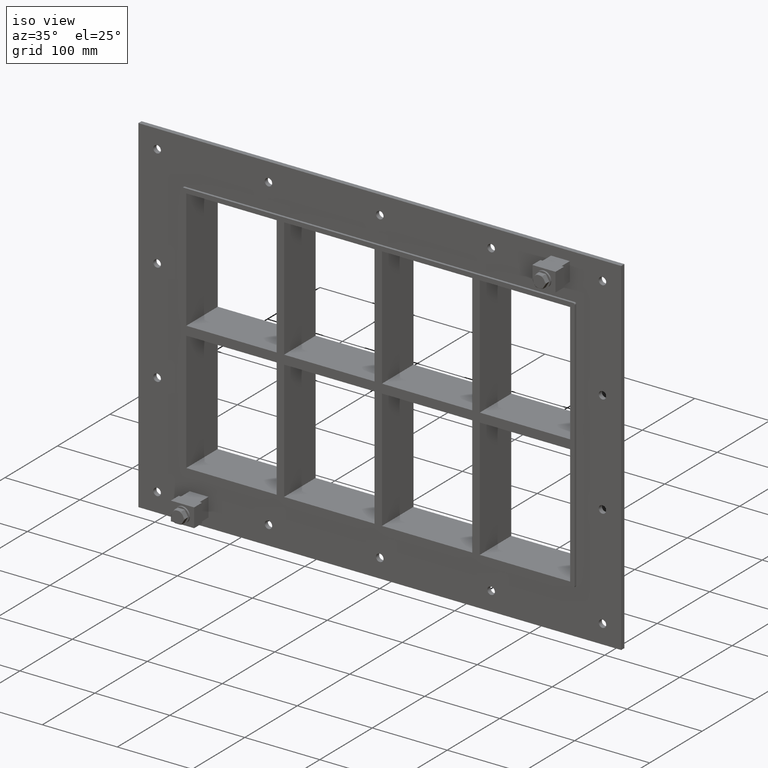
[diagram: clean part render]
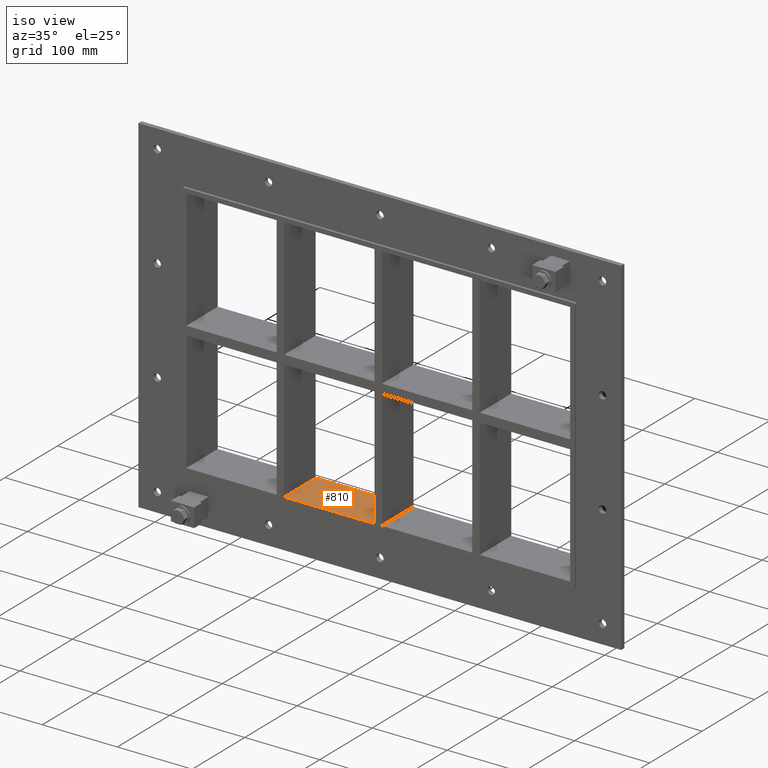
[diagram: same view with one face highlighted and labeled with its STEP entity id]
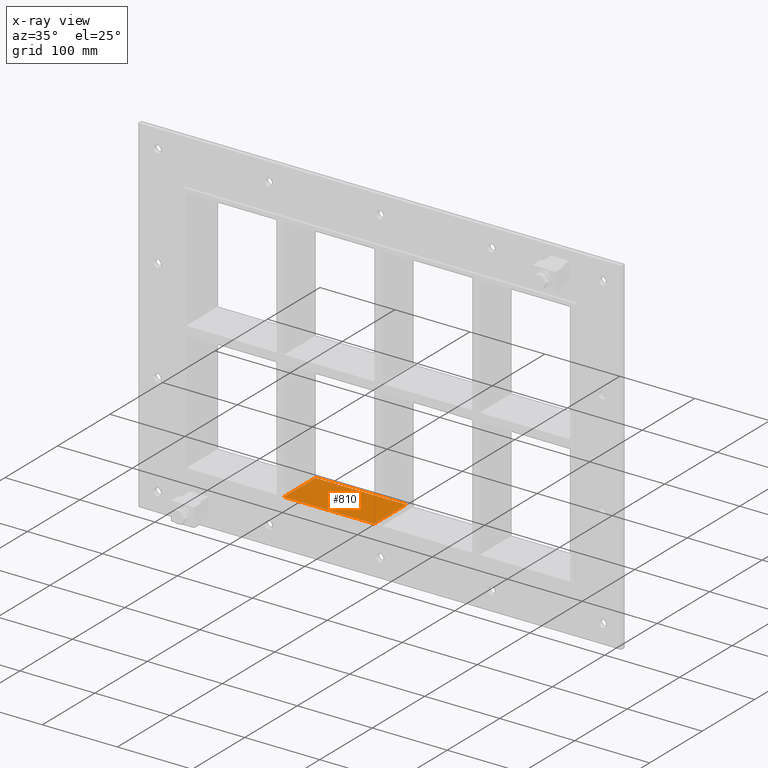
[diagram: x-ray of the same camera — body ghosted, the highlighted face saturated]
A machine part, iso view. The second image highlights one B-rep face of the part: STEP entity #810.
The next image is the same camera in x-ray: the body ghosted, the highlighted face saturated — about 0% of this face is hidden behind the body in this view.
In plain terms, the highlighted planar face has unit normal (0, 0, -1).
Its self-contained STEP definition (entity closure, byte-faithful):
#675=CARTESIAN_POINT('',(-5.00000000000032,57.0,-165.50000000000009));
#676=VERTEX_POINT('',#675);
#683=CARTESIAN_POINT('',(-5.00000000000032,-3.0,-165.50000000000009));
#684=VERTEX_POINT('',#683);
#685=CARTESIAN_POINT('',(-5.00000000000032,-3.0,-165.50000000000009));
#686=DIRECTION('',(0.0,1.0,0.0));
#687=VECTOR('',#686,60.000000000000007);
#688=LINE('',#685,#687);
#689=EDGE_CURVE('',#684,#676,#688,.T.);
#780=CARTESIAN_POINT('',(256.0,0.0,-165.50000000000009));
#781=DIRECTION('',(0.0,0.0,-1.0));
#782=DIRECTION('',(-1.0,0.0,0.0));
#783=AXIS2_PLACEMENT_3D('',#780,#781,#782);
#784=PLANE('',#783);
#785=ORIENTED_EDGE('',*,*,#689,.T.);
#786=CARTESIAN_POINT('',(-125.49999999999272,57.0,-165.49999999998175));
#787=VERTEX_POINT('',#786);
#788=CARTESIAN_POINT('',(-125.49999999999272,57.0,-165.50000000000009));
#789=DIRECTION('',(1.0,0.0,0.0));
#790=VECTOR('',#789,120.49999999999238);
#791=LINE('',#788,#790);
#792=EDGE_CURVE('',#787,#676,#791,.T.);
#793=ORIENTED_EDGE('',*,*,#792,.F.);
#794=CARTESIAN_POINT('',(-125.49999999999272,-3.0,-165.49999999998178));
#795=VERTEX_POINT('',#794);
#796=CARTESIAN_POINT('',(-125.49999999999272,57.000000000000007,-165.50000000000009));
#797=DIRECTION('',(0.0,-1.0,0.0));
#798=VECTOR('',#797,60.000000000000007);
#799=LINE('',#796,#798);
#800=EDGE_CURVE('',#787,#795,#799,.T.);
#801=ORIENTED_EDGE('',*,*,#800,.T.);
#802=CARTESIAN_POINT('',(-5.000000000000341,-3.0,-165.50000000000009));
#803=DIRECTION('',(-1.0,0.0,0.0));
#804=VECTOR('',#803,120.49999999999238);
#805=LINE('',#802,#804);
#806=EDGE_CURVE('',#684,#795,#805,.T.);
#807=ORIENTED_EDGE('',*,*,#806,.F.);
#808=EDGE_LOOP('',(#785,#793,#801,#807));
#809=FACE_OUTER_BOUND('',#808,.T.);
#810=ADVANCED_FACE('',(#809),#784,.F.);